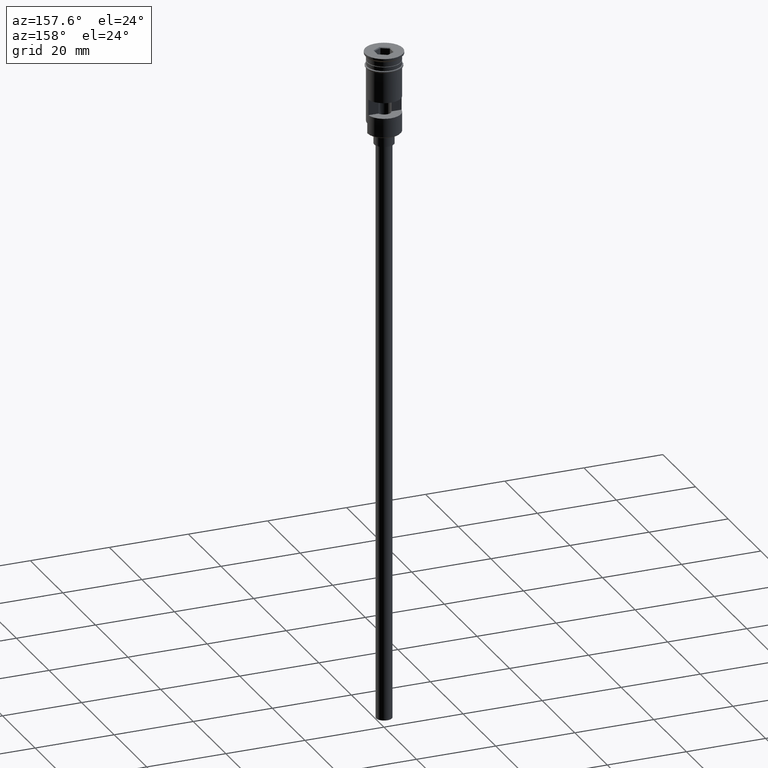
[diagram: clean part render]
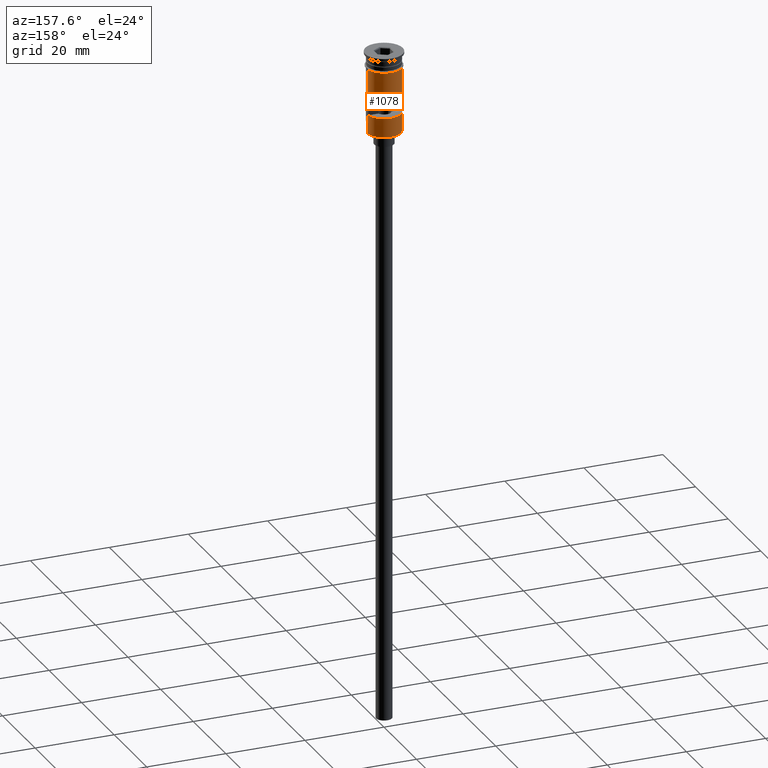
[diagram: same view with one face highlighted and labeled with its STEP entity id]
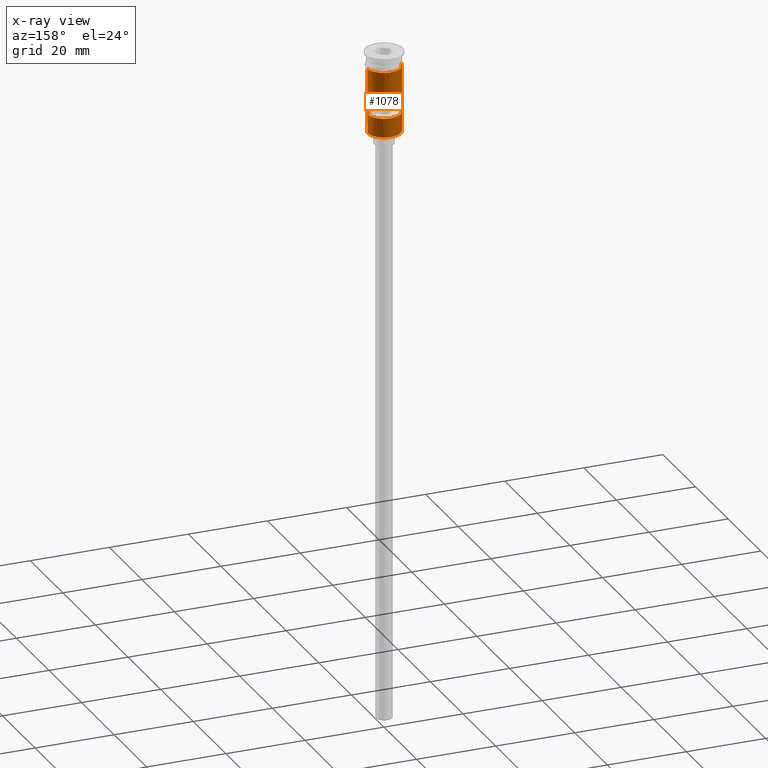
[diagram: x-ray of the same camera — body ghosted, the highlighted face saturated]
A machine part, auxiliary view. The second image highlights one B-rep face of the part: STEP entity #1078.
The next image is the same camera in x-ray: the body ghosted, the highlighted face saturated — about 0% of this face is hidden behind the body in this view.
In plain terms, the highlighted cylindrical surface (edge-blend (fillet) strip) has radius 4.25 mm, axis along (-0, -0, 1).
Its self-contained STEP definition (entity closure, byte-faithful):
#2 = CARTESIAN_POINT ( 'NONE',  ( 4.249999999999996447, 5.204748896376247741E-16, -17.80000000000000071 ) ) ;
#13 = CARTESIAN_POINT ( 'NONE',  ( -4.249999999999999112, 5.204748896376250699E-16, -3.799999999999998934 ) ) ;
#28 = VECTOR ( 'NONE', #1420, 1000.000000000000000 ) ;
#34 = VERTEX_POINT ( 'NONE', #723 ) ;
#77 = CARTESIAN_POINT ( 'NONE',  ( -4.249999999999996447, 5.204748896376247741E-16, 0.000000000000000000 ) ) ;
#84 = EDGE_LOOP ( 'NONE', ( #1260, #1566, #1418, #272 ) ) ;
#107 = DIRECTION ( 'NONE',  ( -0.000000000000000000, -0.000000000000000000, 1.000000000000000000 ) ) ;
#141 = CARTESIAN_POINT ( 'NONE',  ( -4.207433897282282231, 0.5999999999999996447, -15.50000000000000000 ) ) ;
#171 = VERTEX_POINT ( 'NONE', #2 ) ;
#173 = DIRECTION ( 'NONE',  ( -0.000000000000000000, -0.000000000000000000, 1.000000000000000000 ) ) ;
#187 = DIRECTION ( 'NONE',  ( 0.000000000000000000, 0.000000000000000000, 1.000000000000000000 ) ) ;
#189 = CARTESIAN_POINT ( 'NONE',  ( -4.207433897282282231, 0.5999999999999996447, 0.000000000000000000 ) ) ;
#205 = VECTOR ( 'NONE', #797, 1000.000000000000000 ) ;
#220 = EDGE_CURVE ( 'NONE', #1387, #921, #1518, .T. ) ;
#233 = AXIS2_PLACEMENT_3D ( 'NONE', #343, #107, #1444 ) ;
#263 = AXIS2_PLACEMENT_3D ( 'NONE', #917, #535, #1508 ) ;
#271 = EDGE_CURVE ( 'NONE', #1157, #750, #1411, .T. ) ;
#272 = ORIENTED_EDGE ( 'NONE', *, *, #1598, .F. ) ;
#299 = EDGE_CURVE ( 'NONE', #171, #814, #904, .T. ) ;
#342 = EDGE_CURVE ( 'NONE', #750, #1436, #1336, .T. ) ;
#343 = CARTESIAN_POINT ( 'NONE',  ( 0.000000000000000000, 0.000000000000000000, -3.799999999999998934 ) ) ;
#409 = LINE ( 'NONE', #668, #941 ) ;
#421 = VECTOR ( 'NONE', #803, 1000.000000000000000 ) ;
#436 = CARTESIAN_POINT ( 'NONE',  ( 0.000000000000000000, 0.000000000000000000, -20.30000000000000426 ) ) ;
#440 = CARTESIAN_POINT ( 'NONE',  ( -4.249999999999994671, 0.000000000000000000, -20.49999999999999645 ) ) ;
#452 = CIRCLE ( 'NONE', #263, 4.249999999999996447 ) ;
#459 = DIRECTION ( 'NONE',  ( 1.000000000000000000, 0.000000000000000000, 0.000000000000000000 ) ) ;
#461 = VERTEX_POINT ( 'NONE', #486 ) ;
#464 = CARTESIAN_POINT ( 'NONE',  ( 4.249999999999999112, 0.000000000000000000, -3.799999999999998934 ) ) ;
#486 = CARTESIAN_POINT ( 'NONE',  ( 4.249999999999994671, 5.204748896376245769E-16, -20.30000000000000426 ) ) ;
#531 = DIRECTION ( 'NONE',  ( -1.000000000000000000, 0.000000000000000000, 0.000000000000000000 ) ) ;
#535 = DIRECTION ( 'NONE',  ( 0.000000000000000000, 0.000000000000000000, 1.000000000000000000 ) ) ;
#549 = VERTEX_POINT ( 'NONE', #1489 ) ;
#590 = ORIENTED_EDGE ( 'NONE', *, *, #695, .F. ) ;
#606 = DIRECTION ( 'NONE',  ( -0.000000000000000000, 0.000000000000000000, -1.000000000000000000 ) ) ;
#623 = ORIENTED_EDGE ( 'NONE', *, *, #754, .T. ) ;
#651 = CYLINDRICAL_SURFACE ( 'NONE', #1429, 4.249999999999996447 ) ;
#668 = CARTESIAN_POINT ( 'NONE',  ( 4.207433897282282231, 0.5999999999999996447, 0.000000000000000000 ) ) ;
#670 = CARTESIAN_POINT ( 'NONE',  ( 0.000000000000000000, 0.000000000000000000, 0.000000000000000000 ) ) ;
#690 = LINE ( 'NONE', #779, #28 ) ;
#695 = EDGE_CURVE ( 'NONE', #461, #171, #690, .T. ) ;
#723 = CARTESIAN_POINT ( 'NONE',  ( 4.207433897282282231, 0.5999999999999996447, -15.50000000000000000 ) ) ;
#750 = VERTEX_POINT ( 'NONE', #1541 ) ;
#754 = EDGE_CURVE ( 'NONE', #461, #1157, #1557, .T. ) ;
#779 = CARTESIAN_POINT ( 'NONE',  ( 4.249999999999994671, 5.204748896376245769E-16, -20.49999999999999645 ) ) ;
#797 = DIRECTION ( 'NONE',  ( -0.000000000000000000, -0.000000000000000000, 1.000000000000000000 ) ) ;
#803 = DIRECTION ( 'NONE',  ( -0.000000000000000000, -0.000000000000000000, 1.000000000000000000 ) ) ;
#814 = VERTEX_POINT ( 'NONE', #464 ) ;
#816 = EDGE_CURVE ( 'NONE', #921, #549, #1481, .T. ) ;
#827 = ORIENTED_EDGE ( 'NONE', *, *, #864, .F. ) ;
#864 = EDGE_CURVE ( 'NONE', #814, #1436, #1531, .T. ) ;
#902 = CARTESIAN_POINT ( 'NONE',  ( -4.249999999999994671, 0.000000000000000000, -20.30000000000000426 ) ) ;
#904 = LINE ( 'NONE', #929, #1425 ) ;
#917 = CARTESIAN_POINT ( 'NONE',  ( 0.000000000000000000, 0.000000000000000000, -15.50000000000000000 ) ) ;
#918 = DIRECTION ( 'NONE',  ( -0.000000000000000000, -0.000000000000000000, 1.000000000000000000 ) ) ;
#921 = VERTEX_POINT ( 'NONE', #945 ) ;
#929 = CARTESIAN_POINT ( 'NONE',  ( 4.249999999999996447, 0.000000000000000000, 0.000000000000000000 ) ) ;
#941 = VECTOR ( 'NONE', #1562, 1000.000000000000000 ) ;
#945 = CARTESIAN_POINT ( 'NONE',  ( -4.207433897282282231, 0.5999999999999996447, -11.50000000000000000 ) ) ;
#1078 = ADVANCED_FACE ( 'NONE', ( #1170, #1135 ), #651, .T. ) ;
#1085 = EDGE_LOOP ( 'NONE', ( #1498, #1208, #827, #1452, #590, #623 ) ) ;
#1117 = AXIS2_PLACEMENT_3D ( 'NONE', #436, #187, #531 ) ;
#1135 = FACE_OUTER_BOUND ( 'NONE', #1085, .T. ) ;
#1157 = VERTEX_POINT ( 'NONE', #902 ) ;
#1170 = FACE_BOUND ( 'NONE', #84, .T. ) ;
#1208 = ORIENTED_EDGE ( 'NONE', *, *, #342, .T. ) ;
#1260 = ORIENTED_EDGE ( 'NONE', *, *, #1512, .F. ) ;
#1316 = CARTESIAN_POINT ( 'NONE',  ( 0.000000000000000000, 0.000000000000000000, -11.50000000000000000 ) ) ;
#1336 = LINE ( 'NONE', #77, #1580 ) ;
#1387 = VERTEX_POINT ( 'NONE', #141 ) ;
#1398 = DIRECTION ( 'NONE',  ( 1.000000000000000000, 0.000000000000000000, 0.000000000000000000 ) ) ;
#1411 = LINE ( 'NONE', #440, #421 ) ;
#1418 = ORIENTED_EDGE ( 'NONE', *, *, #220, .F. ) ;
#1420 = DIRECTION ( 'NONE',  ( -0.000000000000000000, -0.000000000000000000, 1.000000000000000000 ) ) ;
#1425 = VECTOR ( 'NONE', #173, 1000.000000000000000 ) ;
#1429 = AXIS2_PLACEMENT_3D ( 'NONE', #670, #918, #1398 ) ;
#1436 = VERTEX_POINT ( 'NONE', #13 ) ;
#1444 = DIRECTION ( 'NONE',  ( 1.000000000000000000, 0.000000000000000000, 0.000000000000000000 ) ) ;
#1445 = DIRECTION ( 'NONE',  ( -0.000000000000000000, -0.000000000000000000, 1.000000000000000000 ) ) ;
#1452 = ORIENTED_EDGE ( 'NONE', *, *, #299, .F. ) ;
#1481 = CIRCLE ( 'NONE', #1506, 4.249999999999996447 ) ;
#1489 = CARTESIAN_POINT ( 'NONE',  ( 4.207433897282282231, 0.5999999999999996447, -11.50000000000000000 ) ) ;
#1498 = ORIENTED_EDGE ( 'NONE', *, *, #271, .T. ) ;
#1506 = AXIS2_PLACEMENT_3D ( 'NONE', #1316, #606, #459 ) ;
#1508 = DIRECTION ( 'NONE',  ( -1.000000000000000000, 0.000000000000000000, 0.000000000000000000 ) ) ;
#1512 = EDGE_CURVE ( 'NONE', #549, #34, #409, .T. ) ;
#1518 = LINE ( 'NONE', #189, #205 ) ;
#1531 = CIRCLE ( 'NONE', #233, 4.249999999999999112 ) ;
#1541 = CARTESIAN_POINT ( 'NONE',  ( -4.249999999999994671, 0.000000000000000000, -17.80000000000000071 ) ) ;
#1557 = CIRCLE ( 'NONE', #1117, 4.249999999999996447 ) ;
#1562 = DIRECTION ( 'NONE',  ( 0.000000000000000000, 0.000000000000000000, -1.000000000000000000 ) ) ;
#1566 = ORIENTED_EDGE ( 'NONE', *, *, #816, .F. ) ;
#1580 = VECTOR ( 'NONE', #1445, 1000.000000000000000 ) ;
#1598 = EDGE_CURVE ( 'NONE', #34, #1387, #452, .T. ) ;